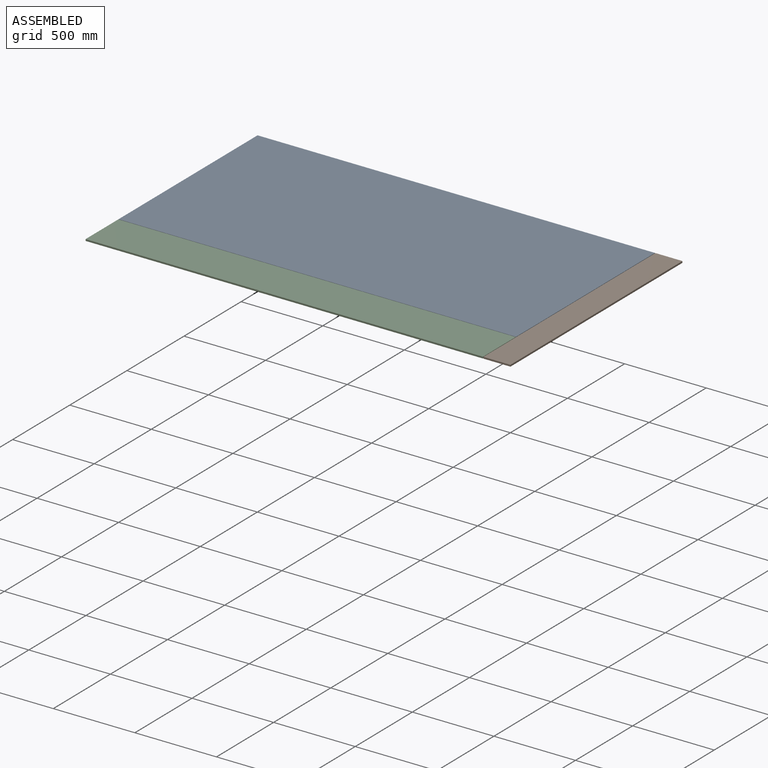
[diagram: assembled view]
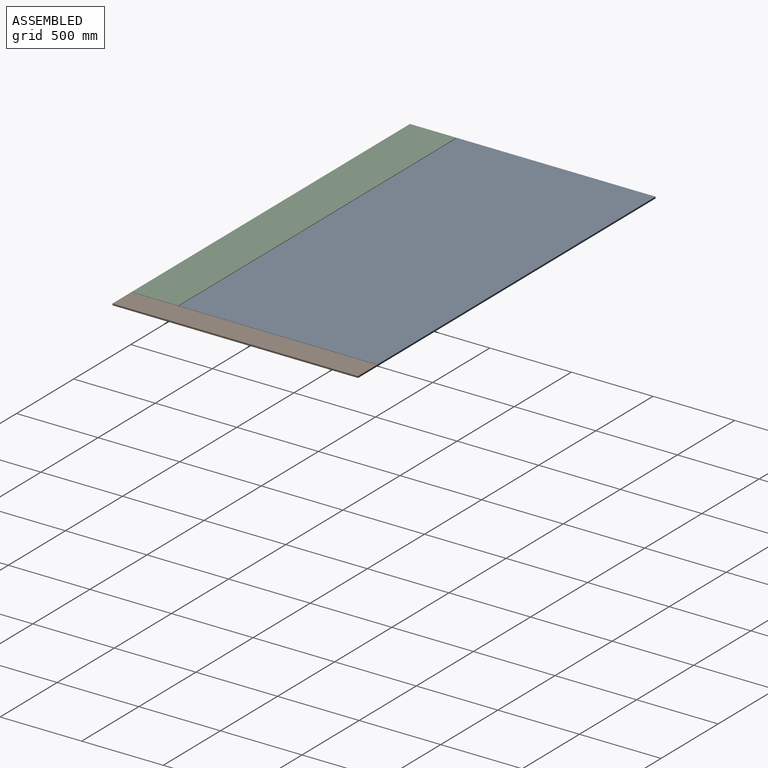
[diagram: assembled view, second angle]
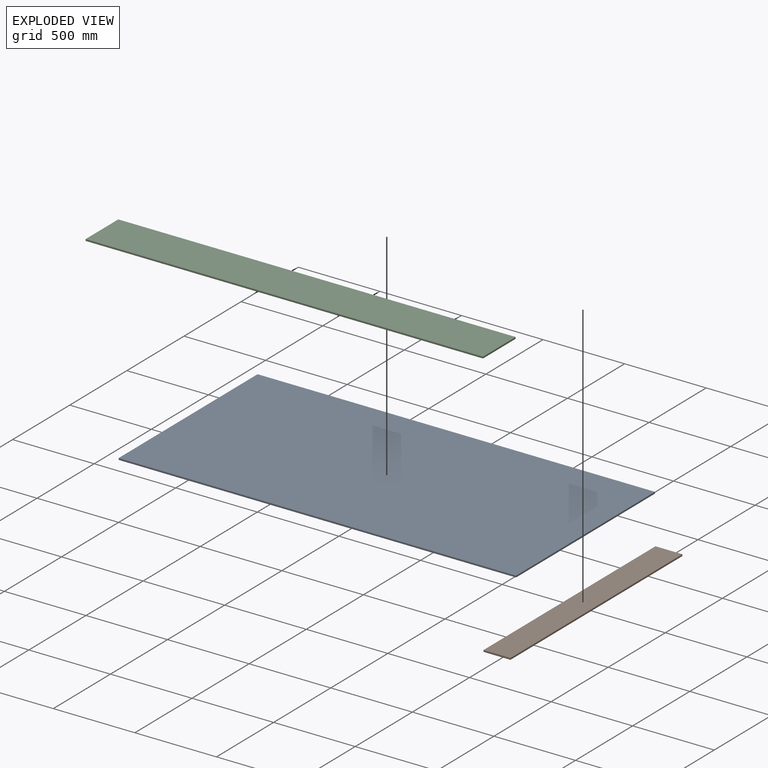
[diagram: exploded view]
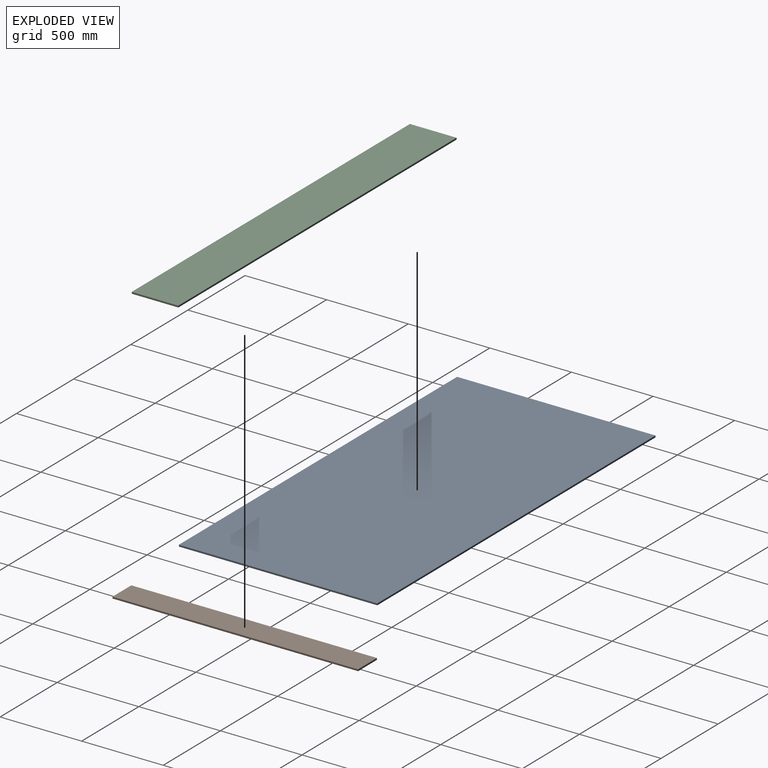
[diagram: exploded view, second angle]
ASSEMBLY  parts=3 mates=2
PART A: 6 faces, bbox 1216x10.2x2435.2 mm
  f0: plane 1216.03x10.16mm, normal (0,0,1), area 12354.8mm2, adj f1,f3,f4,f5
  f1: plane 2435.23x10.16mm, normal (-1,0,0), area 24741.9mm2, adj f0,f2,f4,f5
  f2: plane 1216.03x10.16mm, normal (0,0,-1), area 12354.8mm2, adj f1,f3,f4,f5
  f3: plane 2435.23x10.16mm, normal (1,0,0), area 24741.9mm2, adj f0,f2,f4,f5
  f4: plane 2435.23x1216.03mm, normal (0,-1,0), area 2961294.5mm2, adj f0,f1,f2,f3
  f5: plane 2435.23x1216.03mm, normal (0,1,0), area 2961294.5mm2, adj f0,f1,f2,f3
PART B: 6 faces, bbox 165.1x10.2x1505 mm
  f0: plane 1504.95x165.1mm, normal (0,1,0), area 248467.2mm2, adj f1,f2,f4,f5
  f1: plane 1504.95x10.16mm, normal (-1,0,0), area 15290.3mm2, adj f0,f2,f3,f4
  f2: plane 165.1x10.16mm, normal (0,0,-1), area 1677.4mm2, adj f0,f1,f3,f5
  f3: plane 1504.95x165.1mm, normal (0,-1,0), area 248467.2mm2, adj f1,f2,f4,f5
  f4: plane 165.1x10.16mm, normal (0,0,1), area 1677.4mm2, adj f0,f1,f3,f5
  f5: plane 1504.95x10.16mm, normal (1,0,0), area 15290.3mm2, adj f0,f2,f3,f4
PART C: 6 faces, bbox 285.8x10.2x2435.2 mm
  f0: plane 285.75x10.16mm, normal (0,0,1), area 2903.2mm2, adj f1,f3,f4,f5
  f1: plane 2435.23x10.16mm, normal (-1,0,0), area 24741.9mm2, adj f0,f2,f3,f4
  f2: plane 285.75x10.16mm, normal (0,0,-1), area 2903.2mm2, adj f1,f3,f4,f5
  f3: plane 2435.23x285.75mm, normal (0,-1,0), area 695865.5mm2, adj f0,f1,f2,f5
  f4: plane 2435.23x285.75mm, normal (0,1,0), area 695865.5mm2, adj f0,f1,f2,f5
  f5: plane 2435.23x10.16mm, normal (1,0,0), area 24741.9mm2, adj f0,f2,f3,f4
PLACE A rot(axis=(-0.58,0.58,-0.58),120deg) t=(2435.23,-3275.98,-10.16)mm
PLACE B rot(axis=(-1,0,0),90deg) t=(1179.84,2258.06,-10.16)mm
PLACE C rot(axis=(0.58,0.58,0.58),120deg) t=(2546.98,-1255.38,0)mm
MATE fastened C.f3 <-> A.f5  axis (0,0,-1) through (0,-3.18,-10.16)mm
MATE fastened B.f3 <-> A.f4  axis (0,0,1) through (2438.4,1216.03,0)mm
